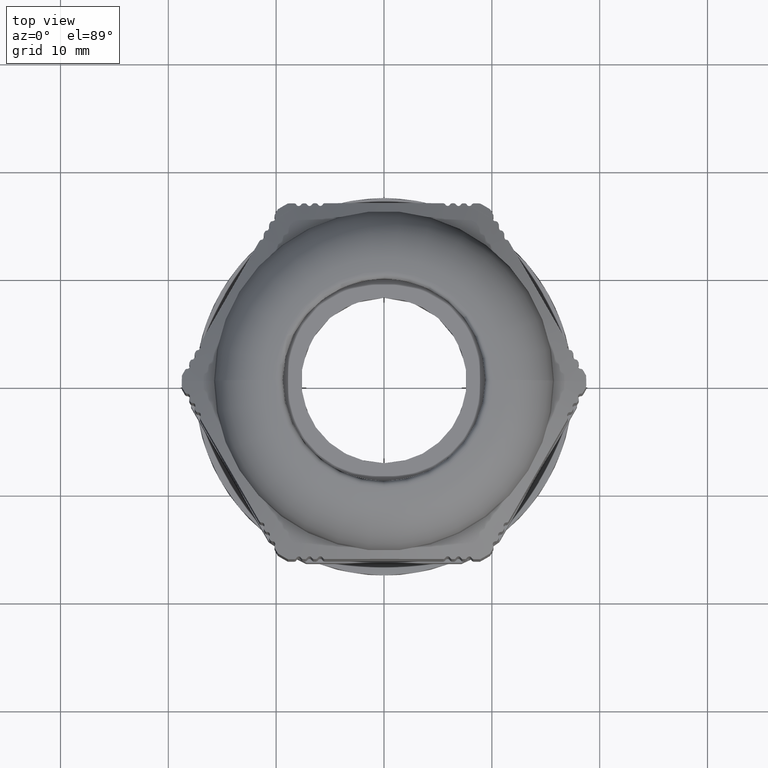
[diagram: clean part render]
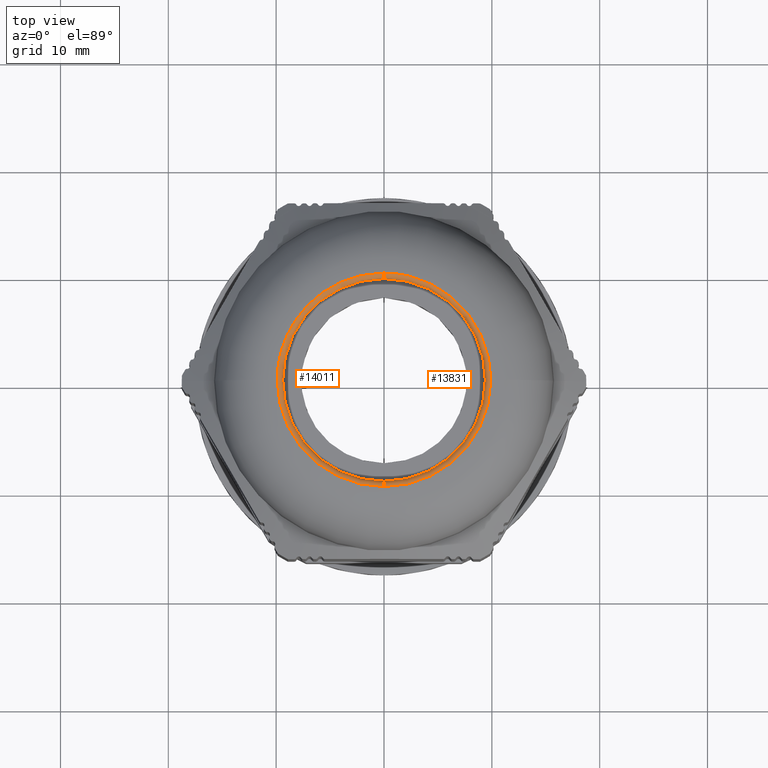
[diagram: same view with one multi-face feature highlighted, each face labeled with its STEP entity id]
A machine part, top view. The highlighted faces form ONE feature: a constant-radius fillet chain: 2 tangent blend faces with common blend radius 0.5 mm. The faces share edges in the B-rep.
Their STEP definitions:
[1] entity #13831 (Torus):
#1369 = VERTEX_POINT ( 'NONE', #8341 ) ;
#1378 = VERTEX_POINT ( 'NONE', #8331 ) ;
#1382 = VERTEX_POINT ( 'NONE', #8325 ) ;
#1416 = VERTEX_POINT ( 'NONE', #8394 ) ;
#1442 = VERTEX_POINT ( 'NONE', #2435 ) ;
#1456 = VERTEX_POINT ( 'NONE', #2436 ) ;
#1865 = CARTESIAN_POINT ( 'NONE',  ( 9.504443466971903100, 2.770479614432047800, 44.37108913028692600 ) ) ;
#1866 = CARTESIAN_POINT ( 'NONE',  ( 9.686937427341353800, 2.044925650721982200, 44.37108902778274500 ) ) ;
#1867 = CARTESIAN_POINT ( 'NONE',  ( 9.504649312326408900, 2.769774357740240500, 44.37108913028694000 ) ) ;
#1869 = CARTESIAN_POINT ( 'NONE',  ( 9.337776044440573700, 3.341764418498474100, 44.37108913028695400 ) ) ;
#1870 = CARTESIAN_POINT ( 'NONE',  ( 9.556434567978133300, 2.586326096799142600, 44.37108912790304100 ) ) ;
#1873 = CARTESIAN_POINT ( 'NONE',  ( 9.638214384749892000, 2.269966048431057500, 44.37108909878439500 ) ) ;
#1874 = CARTESIAN_POINT ( 'NONE',  ( 9.601467874226575100, 2.416222469946168100, 44.37108911608959300 ) ) ;
#1875 = CARTESIAN_POINT ( 'NONE',  ( 9.505575203743205700, 2.766596071575416100, 44.37108913028676200 ) ) ;
#1876 = CARTESIAN_POINT ( 'NONE',  ( 9.801950772570005900, 1.393331948558987900, 44.37108889475612000 ) ) ;
#1877 = CARTESIAN_POINT ( 'NONE',  ( 8.577409425431888200, 4.952271909453878100, 44.37108912721983200 ) ) ;
#1878 = CARTESIAN_POINT ( 'NONE',  ( 8.073438180366226300, 5.730523184012883900, 44.37108913004042400 ) ) ;
#1880 = CARTESIAN_POINT ( 'NONE',  ( 7.997306875545227500, 5.835693527185771500, 44.37108913022177600 ) ) ;
#1882 = CARTESIAN_POINT ( 'NONE',  ( 9.510667854931925900, 2.749062428805863600, 44.37108913028117700 ) ) ;
#1884 = CARTESIAN_POINT ( 'NONE',  ( 9.804499097291566700, 1.375213337438763200, 44.37108890876589100 ) ) ;
#1885 = CARTESIAN_POINT ( 'NONE',  ( 9.801017390920868900, 1.399919291281199700, 44.37108888953162700 ) ) ;
#1887 = CARTESIAN_POINT ( 'NONE',  ( 9.504893526823105200, 2.768935635353955100, 44.37108913028689700 ) ) ;
#1888 = CARTESIAN_POINT ( 'NONE',  ( 8.722060725713792100, 4.692814141275928100, 44.37108912651204000 ) ) ;
#1890 = CARTESIAN_POINT ( 'NONE',  ( 9.808018541213213500, 1.349840529217189800, 44.37108892746909600 ) ) ;
#1891 = CARTESIAN_POINT ( 'NONE',  ( 9.794931268256334500, 1.442755312979283200, 44.37108885524036600 ) ) ;
#1892 = CARTESIAN_POINT ( 'NONE',  ( 9.814889685048438400, 1.299071816300571000, 44.37108896182961400 ) ) ;
#1893 = CARTESIAN_POINT ( 'NONE',  ( 9.526056789708970700, 2.695365589028269900, 44.37108913007929100 ) ) ;
#1894 = CARTESIAN_POINT ( 'NONE',  ( 9.507211771559079600, 2.760971888296999100, 44.37108913028602300 ) ) ;
#1895 = CARTESIAN_POINT ( 'NONE',  ( 9.120201259816637300, 3.896533073070253200, 44.37108912651206100 ) ) ;
#1896 = CARTESIAN_POINT ( 'NONE',  ( 8.343400994102001500, 5.330934721568063100, 44.37108912863542500 ) ) ;
#1897 = CARTESIAN_POINT ( 'NONE',  ( 9.543072108915566800, 2.634813203780643800, 44.37108912918530700 ) ) ;
#1898 = CARTESIAN_POINT ( 'NONE',  ( 9.742887567279929300, 1.760976596801974600, 44.37108892564313600 ) ) ;
#1899 = CARTESIAN_POINT ( 'NONE',  ( 8.222141123992912500, 5.517636376865604000, 44.37108912940958300 ) ) ;
#1901 = CARTESIAN_POINT ( 'NONE',  ( 9.899999999999995000, -1.818600496733817600E-015, 44.37108913028694000 ) ) ;
#1904 = CARTESIAN_POINT ( 'NONE',  ( 9.899974792677932500, 0.2342184526232276900, 44.37108913028694700 ) ) ;
#1905 = CARTESIAN_POINT ( 'NONE',  ( 9.827960596491506000, 1.197444942565720800, 44.37108901924889900 ) ) ;
#1906 = CARTESIAN_POINT ( 'NONE',  ( 9.802718413738761100, 1.387896808605156600, 44.37108889901937700 ) ) ;
#1908 = CARTESIAN_POINT ( 'NONE',  ( 9.801438013851957000, 1.396955233892558200, 44.37108889189464400 ) ) ;
#1911 = CARTESIAN_POINT ( 'NONE',  ( 9.754591890034937800, 1.694346797248210500, 44.37108890199189700 ) ) ;
#1912 = CARTESIAN_POINT ( 'NONE',  ( 9.721437327986040000, 1.874337338211622200, 44.37108896710218900 ) ) ;
#1913 = CARTESIAN_POINT ( 'NONE',  ( 9.713635948292369100, 1.914359497205203600, 44.37108898187977200 ) ) ;
#1914 = CARTESIAN_POINT ( 'NONE',  ( 9.783592878869882300, 1.521633532919296300, 44.37108885403865300 ) ) ;
#1915 = CARTESIAN_POINT ( 'NONE',  ( 9.696563231257718100, 1.998835061109429200, 44.37108901196180700 ) ) ;
#1919 = CARTESIAN_POINT ( 'NONE',  ( 9.851413872811937400, 0.9938569271394097600, 44.37108909552209500 ) ) ;
#1920 = CARTESIAN_POINT ( 'NONE',  ( 9.891687909781714100, 0.4684276668608448000, 44.37108913697949900 ) ) ;
#1921 = CARTESIAN_POINT ( 'NONE',  ( 9.866897874862536000, 0.8188606291218075700, 44.37108911610560100 ) ) ;
#1923 = CARTESIAN_POINT ( 'NONE',  ( 9.518303274623717100, 2.722596706155926000, 44.37108913024093200 ) ) ;
#1925 = CARTESIAN_POINT ( 'NONE',  ( 1.059990373393936600, 9.845357520846072000, 44.37108912764632200 ) ) ;
#1928 = CARTESIAN_POINT ( 'NONE',  ( 7.517281640386211300, 6.477035021773900800, 44.37108913028694700 ) ) ;
#1930 = CARTESIAN_POINT ( 'NONE',  ( 3.265402959333254500, 9.381303678133580300, 44.37108911459402100 ) ) ;
#1934 = CARTESIAN_POINT ( 'NONE',  ( 7.942202671280080400, 5.910283625726521000, 44.37108913028092200 ) ) ;
#1935 = CARTESIAN_POINT ( 'NONE',  ( 7.931116989792914600, 5.925153504385248100, 44.37108913028572500 ) ) ;
#1936 = CARTESIAN_POINT ( 'NONE',  ( 0.5335836644601932300, 9.886204742705519500, 44.37108912955604700 ) ) ;
#1940 = CARTESIAN_POINT ( 'NONE',  ( 5.962566698311149200, 7.935745395870795500, 44.37108911459402100 ) ) ;
#1943 = CARTESIAN_POINT ( 'NONE',  ( 5.351510244497343500, 8.364171188494415400, 44.37108911097258400 ) ) ;
#1945 = CARTESIAN_POINT ( 'NONE',  ( 1.681348458652717200, 9.765196609975673100, 44.37108912447756400 ) ) ;
#1954 = CARTESIAN_POINT ( 'NONE',  ( 0.1072310957130795200, 9.899461237253484900, 44.37108913025609500 ) ) ;
#1956 = CARTESIAN_POINT ( 'NONE',  ( 0.8505696172143482100, 9.865709372564477800, 44.37108912856582800 ) ) ;
#1957 = CARTESIAN_POINT ( 'NONE',  ( 4.002975215497224700, 9.087035324654293000, 44.37108911097258400 ) ) ;
#1960 = CARTESIAN_POINT ( 'NONE',  ( 7.958799863347751500, 5.887955454021316400, 44.37108913027020000 ) ) ;
#1961 = CARTESIAN_POINT ( 'NONE',  ( 0.05365075028941364300, 9.899893760078233700, 44.37108913028068000 ) ) ;
#1963 = CARTESIAN_POINT ( 'NONE',  ( 7.045392939222280000, 6.992122546110145700, 44.37108912425120600 ) ) ;
#1965 = CARTESIAN_POINT ( 'NONE',  ( 0.02565448999637590400, 9.900001383889344800, 44.37108913028696100 ) ) ;
#1967 = CARTESIAN_POINT ( 'NONE',  ( 0.1875303303553052200, 9.898486734511823900, 44.37108913020128400 ) ) ;
#1977 = CARTESIAN_POINT ( 'NONE',  ( 2.086343998151459500, 9.686268703870728900, 44.37108912183691700 ) ) ;
#1979 = CARTESIAN_POINT ( 'NONE',  ( 0.3743778696301401400, 9.893944780392590800, 44.37108912995347500 ) ) ;
#1981 = CARTESIAN_POINT ( 'NONE',  ( -4.093159797732040600E-009, 9.899999999999781900, 44.37108913028694700 ) ) ;
#1986 = CARTESIAN_POINT ( 'NONE',  ( 7.926292474368969100, 5.931608827784782700, 44.37108913028694000 ) ) ;
#2201 = DIRECTION ( 'NONE',  ( -0.0000000000000000000, -0.0000000000000000000, -1.000000000000000000 ) ) ;
#2204 = DIRECTION ( 'NONE',  ( 1.000000000000000000, 0.0000000000000000000, 0.0000000000000000000 ) ) ;
#2220 = CARTESIAN_POINT ( 'NONE',  ( 0.0000000000000000000, 0.0000000000000000000, 43.87108913028693300 ) ) ;
#2224 = DIRECTION ( 'NONE',  ( 1.224646799147356200E-016, 1.000000000000000000, 0.0000000000000000000 ) ) ;
#2234 = CARTESIAN_POINT ( 'NONE',  ( 1.212400331155879900E-015, 9.900000000000002100, 43.87108913028692600 ) ) ;
#2240 = DIRECTION ( 'NONE',  ( 1.000000000000000000, -1.224646799147353200E-016, -2.291325031643130700E-032 ) ) ;
#2392 = CARTESIAN_POINT ( 'NONE',  ( 0.0000000000000000000, 0.0000000000000000000, 43.87108913028693300 ) ) ;
#2406 = DIRECTION ( 'NONE',  ( 1.000000000000000000, 0.0000000000000000000, 0.0000000000000000000 ) ) ;
#2410 = DIRECTION ( 'NONE',  ( -0.0000000000000000000, -0.0000000000000000000, -1.000000000000000000 ) ) ;
#2435 = CARTESIAN_POINT ( 'NONE',  ( -4.093159797732040600E-009, 9.899999999999781900, 44.37108913028694700 ) ) ;
#2436 = CARTESIAN_POINT ( 'NONE',  ( 1.182113181442366300E-015, 9.400000000000000400, 43.87108913028693300 ) ) ;
#2640 = EDGE_CURVE ( 'NONE', #1369, #1442, #7848, .T. ) ;
#2675 = EDGE_CURVE ( 'NONE', #1378, #1382, #12946, .T. ) ;
#2681 = EDGE_CURVE ( 'NONE', #1442, #1456, #12949, .T. ) ;
#2709 = EDGE_CURVE ( 'NONE', #1456, #1378, #12915, .T. ) ;
#2718 = EDGE_CURVE ( 'NONE', #1416, #1369, #12966, .T. ) ;
#2778 = EDGE_CURVE ( 'NONE', #1416, #1382, #4869, .T. ) ;
#3045 = TOROIDAL_SURFACE ( 'NONE', #3052, 9.900000000000002100, 0.5000000000000047700 ) ;
#3052 = AXIS2_PLACEMENT_3D ( 'NONE', #6097, #6098, #6086 ) ;
#3961 = ORIENTED_EDGE ( 'NONE', *, *, #2675, .T. ) ;
#4004 = ORIENTED_EDGE ( 'NONE', *, *, #2709, .T. ) ;
#4025 = ORIENTED_EDGE ( 'NONE', *, *, #2718, .T. ) ;
#4029 = ORIENTED_EDGE ( 'NONE', *, *, #2778, .F. ) ;
#4041 = ORIENTED_EDGE ( 'NONE', *, *, #2681, .T. ) ;
#4076 = ORIENTED_EDGE ( 'NONE', *, *, #2640, .T. ) ;
#4860 = AXIS2_PLACEMENT_3D ( 'NONE', #5456, #5438, #5444 ) ;
#4869 = CIRCLE ( 'NONE', #4860, 0.5000000000000073300 ) ;
#5438 = DIRECTION ( 'NONE',  ( -1.000000000000000000, 2.514011141268709100E-047, 6.811375142836254300E-032 ) ) ;
#5444 = DIRECTION ( 'NONE',  ( 6.811375142836220400E-032, 0.0000000000000000000, 1.000000000000000000 ) ) ;
#5456 = CARTESIAN_POINT ( 'NONE',  ( 0.0000000000000000000, -9.900000000000002100, 43.87108913028694000 ) ) ;
#6086 = DIRECTION ( 'NONE',  ( -2.030547460255491200E-047, -1.000000000000000000, 3.690901012716612600E-016 ) ) ;
#6091 = FACE_OUTER_BOUND ( 'NONE', #11241, .T. ) ;
#6097 = CARTESIAN_POINT ( 'NONE',  ( 0.0000000000000000000, -5.755839955992561600E-016, 43.87108913028693300 ) ) ;
#6098 = DIRECTION ( 'NONE',  ( 6.811375142836254300E-032, 3.690901012716612100E-016, 1.000000000000000000 ) ) ;
#7848 = B_SPLINE_CURVE_WITH_KNOTS ( 'NONE', 3,
 ( #1901, #1904, #1920, #1921, #1919, #1905, #1892, #1890, #1884, #1906, #1876, #1908, #1885, #1891, #1914, #1911, #1898, #1912, #1913, #1915, #1866, #1873, #1874, #1870, #1897, #1893, #1923, #1882, #1894, #1875, #1887, #1865, #1867, #1869, #1895, #1888, #1877, #1896, #1899, #1878, #1880, #1960, #1934, #1935, #1986, #1928, #1963, #1940, #1943, #1957, #1930, #1977, #1945, #1925, #1956, #1936, #1979, #1967, #1954, #1961, #1965, #1981 ),
 .UNSPECIFIED., .F., .F.,
 ( 4, 2, 1, 1, 1, 1, 1, 1, 2, 2, 2, 2, 2, 2, 2, 2, 1, 1, 1, 1, 2, 2, 2, 2, 1, 1, 1, 1, 2, 2, 2, 2, 2, 2, 2, 1, 1, 2, 4 ),
 ( 0.0000000000000000000, 0.03125000000000483600, 0.04687500000000726500, 0.05468750000000849300, 0.05859375000000912500, 0.06054687500000943700, 0.06152343750000958300, 0.06201171875000968700, 0.06225585937500974200, 0.06250000000000978400, 0.07812500000001003400, 0.08593750000001015900, 0.08984375000001024200, 0.09375000000001031100, 0.1093750000000106300, 0.1171875000000108100, 0.1210937500000108100, 0.1230468750000108700, 0.1240234375000110200, 0.1245117187500111000, 0.1247558593750110600, 0.1250000000000110200, 0.1875000000000059700, 0.2187500000000033900, 0.2343750000000020300, 0.2421875000000012800, 0.2460937500000008900, 0.2480468750000007500, 0.2490234375000007500, 0.2500000000000007200, 0.3125000000000005000, 0.3750000000000003300, 0.4375000000000002200, 0.4687500000000001700, 0.4843750000000001100, 0.4921875000000001100, 0.4960937500000001100, 0.4980468750000001100, 0.5000000000000000000 ),
 .UNSPECIFIED. ) ;
#8325 = CARTESIAN_POINT ( 'NONE',  ( 1.702745452337968900E-032, -9.400000000000000400, 43.87108913028693300 ) ) ;
#8331 = CARTESIAN_POINT ( 'NONE',  ( 9.400000000000000400, 0.0000000000000000000, 43.87108913028693300 ) ) ;
#8341 = CARTESIAN_POINT ( 'NONE',  ( 9.899999999999995000, -1.818600496733817600E-015, 44.37108913028694000 ) ) ;
#8394 = CARTESIAN_POINT ( 'NONE',  ( 3.405687571418160000E-032, -9.899999999999995000, 44.37108913028694700 ) ) ;
#11241 = EDGE_LOOP ( 'NONE', ( #4076, #4041, #4004, #3961, #4029, #4025 ) ) ;
#12915 = CIRCLE ( 'NONE', #12922, 9.400000000000000400 ) ;
#12922 = AXIS2_PLACEMENT_3D ( 'NONE', #2392, #2410, #2406 ) ;
#12938 = AXIS2_PLACEMENT_3D ( 'NONE', #2220, #2201, #2204 ) ;
#12946 = CIRCLE ( 'NONE', #12938, 9.400000000000000400 ) ;
#12949 = CIRCLE ( 'NONE', #12954, 0.5000000000000038900 ) ;
#12954 = AXIS2_PLACEMENT_3D ( 'NONE', #2234, #2240, #2224 ) ;
#12966 = CIRCLE ( 'NONE', #12982, 9.899999999999986100 ) ;
#12982 = AXIS2_PLACEMENT_3D ( 'NONE', #14733, #14740, #14798 ) ;
#13831 = ADVANCED_FACE ( 'NONE', ( #6091 ), #3045, .T. ) ;
#14733 = CARTESIAN_POINT ( 'NONE',  ( 3.405687571418160000E-032, -3.910389449634238600E-016, 44.37108913028694000 ) ) ;
#14740 = DIRECTION ( 'NONE',  ( 6.811375142836254300E-032, 3.690901012716612100E-016, 1.000000000000000000 ) ) ;
#14798 = DIRECTION ( 'NONE',  ( 0.0000000000000000000, -1.000000000000000000, 7.008983741320442600E-016 ) ) ;
[2] entity #14011 (Torus):
#1382 = VERTEX_POINT ( 'NONE', #8325 ) ;
#1416 = VERTEX_POINT ( 'NONE', #8394 ) ;
#1442 = VERTEX_POINT ( 'NONE', #2435 ) ;
#1454 = VERTEX_POINT ( 'NONE', #2428 ) ;
#1456 = VERTEX_POINT ( 'NONE', #2436 ) ;
#2224 = DIRECTION ( 'NONE',  ( 1.224646799147356200E-016, 1.000000000000000000, 0.0000000000000000000 ) ) ;
#2234 = CARTESIAN_POINT ( 'NONE',  ( 1.212400331155879900E-015, 9.900000000000002100, 43.87108913028692600 ) ) ;
#2240 = DIRECTION ( 'NONE',  ( 1.000000000000000000, -1.224646799147353200E-016, -2.291325031643130700E-032 ) ) ;
#2327 = CARTESIAN_POINT ( 'NONE',  ( 0.0000000000000000000, 0.0000000000000000000, 43.87108913028693300 ) ) ;
#2328 = DIRECTION ( 'NONE',  ( -0.0000000000000000000, -0.0000000000000000000, -1.000000000000000000 ) ) ;
#2329 = DIRECTION ( 'NONE',  ( 1.000000000000000000, 0.0000000000000000000, 0.0000000000000000000 ) ) ;
#2428 = CARTESIAN_POINT ( 'NONE',  ( -9.400000000000000400, 1.151167991198511900E-015, 43.87108913028693300 ) ) ;
#2435 = CARTESIAN_POINT ( 'NONE',  ( -4.093159797732040600E-009, 9.899999999999781900, 44.37108913028694700 ) ) ;
#2436 = CARTESIAN_POINT ( 'NONE',  ( 1.182113181442366300E-015, 9.400000000000000400, 43.87108913028693300 ) ) ;
#2681 = EDGE_CURVE ( 'NONE', #1442, #1456, #12949, .T. ) ;
#2697 = EDGE_CURVE ( 'NONE', #1382, #1454, #12950, .T. ) ;
#2778 = EDGE_CURVE ( 'NONE', #1416, #1382, #4869, .T. ) ;
#2898 = CIRCLE ( 'NONE', #2932, 9.400000000000000400 ) ;
#2932 = AXIS2_PLACEMENT_3D ( 'NONE', #14855, #14886, #14908 ) ;
#3181 = TOROIDAL_SURFACE ( 'NONE', #3288, 9.900000000000002100, 0.5000000000000047700 ) ;
#3288 = AXIS2_PLACEMENT_3D ( 'NONE', #8674, #8649, #8671 ) ;
#4737 = CIRCLE ( 'NONE', #4746, 9.899999999999986100 ) ;
#4746 = AXIS2_PLACEMENT_3D ( 'NONE', #7542, #7563, #7565 ) ;
#4860 = AXIS2_PLACEMENT_3D ( 'NONE', #5456, #5438, #5444 ) ;
#4869 = CIRCLE ( 'NONE', #4860, 0.5000000000000073300 ) ;
#5438 = DIRECTION ( 'NONE',  ( -1.000000000000000000, 2.514011141268709100E-047, 6.811375142836254300E-032 ) ) ;
#5444 = DIRECTION ( 'NONE',  ( 6.811375142836220400E-032, 0.0000000000000000000, 1.000000000000000000 ) ) ;
#5456 = CARTESIAN_POINT ( 'NONE',  ( 0.0000000000000000000, -9.900000000000002100, 43.87108913028694000 ) ) ;
#6933 = CARTESIAN_POINT ( 'NONE',  ( -9.494130198934316300, 2.805602454680964800, 44.37108913022308300 ) ) ;
#6934 = CARTESIAN_POINT ( 'NONE',  ( -9.569606491207411000, 2.547264273144060500, 44.37108913028694000 ) ) ;
#6935 = CARTESIAN_POINT ( 'NONE',  ( -9.871945472908844700, 0.7484585418918953100, 44.37108906593555000 ) ) ;
#6936 = CARTESIAN_POINT ( 'NONE',  ( -9.873696895640488700, 0.7248145778105802300, 44.37108907169506000 ) ) ;
#6937 = CARTESIAN_POINT ( 'NONE',  ( -9.701539529698274900, 1.976972611247846300, 44.37108907797352900 ) ) ;
#6938 = CARTESIAN_POINT ( 'NONE',  ( -9.899999999999998600, 1.711019886426561400E-015, 44.37108913028694000 ) ) ;
#6939 = CARTESIAN_POINT ( 'NONE',  ( -9.868591709108423900, 0.7917120499150618300, 44.37108905491803800 ) ) ;
#6940 = CARTESIAN_POINT ( 'NONE',  ( -9.798838625931930200, 1.414713320496691300, 44.37108893993634200 ) ) ;
#6941 = CARTESIAN_POINT ( 'NONE',  ( -9.840243748556810400, 1.091318397024314300, 44.37108896882988800 ) ) ;
#6942 = CARTESIAN_POINT ( 'NONE',  ( -9.847435903748110100, 1.025208311428063700, 44.37108898855373700 ) ) ;
#6943 = CARTESIAN_POINT ( 'NONE',  ( -9.899128068684255800, 0.3653994221598544400, 44.37108915469479300 ) ) ;
#6944 = CARTESIAN_POINT ( 'NONE',  ( -9.899985966388470600, 0.1303890560123037400, 44.37108913028694000 ) ) ;
#6945 = CARTESIAN_POINT ( 'NONE',  ( -9.808285211293190600, 1.348846521876260000, 44.37108891708939500 ) ) ;
#6946 = CARTESIAN_POINT ( 'NONE',  ( -9.735645349484329400, 1.804699138286522100, 44.37108904908824100 ) ) ;
#6947 = CARTESIAN_POINT ( 'NONE',  ( -9.863464673372071400, 0.8550600693413829000, 44.37108903809707500 ) ) ;
#6948 = CARTESIAN_POINT ( 'NONE',  ( -9.499081766747078600, 2.788806129176051300, 44.37108913027369500 ) ) ;
#6949 = CARTESIAN_POINT ( 'NONE',  ( -9.797264224554799800, 1.425574280370929000, 44.37108894363973400 ) ) ;
#6950 = CARTESIAN_POINT ( 'NONE',  ( -9.627246403336400200, 2.320202026770317200, 44.37108912103013100 ) ) ;
#6951 = CARTESIAN_POINT ( 'NONE',  ( -9.501949797149771700, 2.779022991464255000, 44.37108913028696100 ) ) ;
#6952 = CARTESIAN_POINT ( 'NONE',  ( -9.800693751624461200, 1.401835747186407400, 44.37108893550109900 ) ) ;
#6953 = CARTESIAN_POINT ( 'NONE',  ( -9.770076754365389200, 1.602749616278859900, 44.37108899849296500 ) ) ;
#6954 = CARTESIAN_POINT ( 'NONE',  ( -9.469028174700071100, 2.889481859656173800, 44.37108912962160900 ) ) ;
#6955 = CARTESIAN_POINT ( 'NONE',  ( -9.486669521309128300, 2.830787109963446300, 44.37108913011105900 ) ) ;
#6956 = CARTESIAN_POINT ( 'NONE',  ( -9.785948853701580000, 1.501557675503620200, 44.37108896841820600 ) ) ;
#6957 = CARTESIAN_POINT ( 'NONE',  ( -9.793548533338043400, 1.450910384132059200, 44.37108895211599000 ) ) ;
#6958 = CARTESIAN_POINT ( 'NONE',  ( -9.799884217824240900, 1.407472100638957000, 44.37108893745164600 ) ) ;
#6959 = CARTESIAN_POINT ( 'NONE',  ( -9.819961568155255400, 1.265304648937173800, 44.37108892471253100 ) ) ;
#6960 = CARTESIAN_POINT ( 'NONE',  ( -9.858137992650041400, 0.9138142203516745900, 44.37108902111374000 ) ) ;
#7504 = CARTESIAN_POINT ( 'NONE',  ( -2.316033284392156900, 9.625371028015777600, 44.37108912987211800 ) ) ;
#7506 = CARTESIAN_POINT ( 'NONE',  ( -4.639620849181516100, 8.745535038662724900, 44.37108912994102600 ) ) ;
#7507 = CARTESIAN_POINT ( 'NONE',  ( -5.117063247429017600, 8.475126066689510300, 44.37108912106040000 ) ) ;
#7508 = CARTESIAN_POINT ( 'NONE',  ( -4.656081514774671200, 8.736759391741982100, 44.37108913028064400 ) ) ;
#7510 = CARTESIAN_POINT ( 'NONE',  ( -1.139102520758128500, 9.834559500338738000, 44.37108906773996600 ) ) ;
#7511 = CARTESIAN_POINT ( 'NONE',  ( -4.649224639190221900, 8.740419149396395000, 44.37108913019956400 ) ) ;
#7512 = CARTESIAN_POINT ( 'NONE',  ( -4.653338974666477100, 8.738223686551750200, 44.37108913025564000 ) ) ;
#7513 = CARTESIAN_POINT ( 'NONE',  ( -4.843370818409701100, 8.634481233714971900, 44.37108913014396400 ) ) ;
#7514 = CARTESIAN_POINT ( 'NONE',  ( -2.433908251947401800, 9.596150455680563200, 44.37108913028695400 ) ) ;
#7515 = CARTESIAN_POINT ( 'NONE',  ( -1.227076755601116200, 9.823958275676389500, 44.37108904233341600 ) ) ;
#7516 = CARTESIAN_POINT ( 'NONE',  ( -4.979871942497539700, 8.556461918995681900, 44.37108912755717700 ) ) ;
#7517 = CARTESIAN_POINT ( 'NONE',  ( -5.130669055416106500, 8.466891750031626500, 44.37108912016420700 ) ) ;
#7518 = CARTESIAN_POINT ( 'NONE',  ( -1.487081575812830000, 9.788100822823208700, 44.37108904725866400 ) ) ;
#7519 = CARTESIAN_POINT ( 'NONE',  ( -1.545677019015694300, 9.779102045384725300, 44.37108905586018900 ) ) ;
#7520 = CARTESIAN_POINT ( 'NONE',  ( -5.139801331893655100, 8.461354677840137800, 44.37108911954673800 ) ) ;
#7521 = CARTESIAN_POINT ( 'NONE',  ( -2.431467772307933700, 9.596768915353894900, 44.37108913028681900 ) ) ;
#7522 = CARTESIAN_POINT ( 'NONE',  ( -3.202942020754582700, 9.376080595600266000, 44.37108916433218300 ) ) ;
#7523 = CARTESIAN_POINT ( 'NONE',  ( -5.146009457362319000, 8.457581935678053500, 44.37108911911340700 ) ) ;
#7524 = CARTESIAN_POINT ( 'NONE',  ( -5.245559051351868600, 8.397001236233022000, 44.37108911203274200 ) ) ;
#7525 = CARTESIAN_POINT ( 'NONE',  ( -1.680573456485274800, 9.756623635827537600, 44.37108907626595300 ) ) ;
#7526 = CARTESIAN_POINT ( 'NONE',  ( -1.795321316122760400, 9.736133416788970200, 44.37108909289316500 ) ) ;
#7527 = CARTESIAN_POINT ( 'NONE',  ( -3.759795392154893000, 9.160823161319081400, 44.37108900986926600 ) ) ;
#7528 = CARTESIAN_POINT ( 'NONE',  ( -1.335134105086058800, 9.810412360975268700, 44.37108902971851200 ) ) ;
#7529 = CARTESIAN_POINT ( 'NONE',  ( -2.427229598945070500, 9.597842756293056600, 44.37108913028655600 ) ) ;
#7530 = CARTESIAN_POINT ( 'NONE',  ( -0.8712050611598873800, 9.862658071010704600, 44.37108911600064700 ) ) ;
#7531 = CARTESIAN_POINT ( 'NONE',  ( -1.221880822689402900, 9.824603515031578000, 44.37108904399033800 ) ) ;
#7532 = CARTESIAN_POINT ( 'NONE',  ( -2.416753527176727100, 9.600489964452906500, 44.37108913028457400 ) ) ;
#7533 = CARTESIAN_POINT ( 'NONE',  ( -1.205967504553278100, 9.826564128821466700, 44.37108904893406000 ) ) ;
#7534 = CARTESIAN_POINT ( 'NONE',  ( -1.754879267322300400, 9.743507619167955300, 44.37108908717228000 ) ) ;
#7535 = CARTESIAN_POINT ( 'NONE',  ( -4.671854087093474400, 8.728328869576074600, 44.37108913028692600 ) ) ;
#7536 = CARTESIAN_POINT ( 'NONE',  ( -5.026392075318183200, 8.529321608019536400, 44.37108912599188000 ) ) ;
#7537 = CARTESIAN_POINT ( 'NONE',  ( -4.658619926947984900, 8.735402949648170400, 44.37108913028694000 ) ) ;
#7538 = CARTESIAN_POINT ( 'NONE',  ( -4.349266291010443400, 8.894740508912491400, 44.37108906714084400 ) ) ;
#7539 = CARTESIAN_POINT ( 'NONE',  ( -1.049878492476547600, 9.844616286958709500, 44.37108908825229000 ) ) ;
#7540 = CARTESIAN_POINT ( 'NONE',  ( -0.4104682294443023300, 9.893624074335704700, 44.37108913267395100 ) ) ;
#7541 = CARTESIAN_POINT ( 'NONE',  ( -4.620398599988154100, 8.755739373482910500, 44.37108912893176400 ) ) ;
#7542 = CARTESIAN_POINT ( 'NONE',  ( 3.405687571418160000E-032, -3.910389449634238600E-016, 44.37108913028694000 ) ) ;
#7543 = CARTESIAN_POINT ( 'NONE',  ( -2.123035684498984400, 9.670306588410429800, 44.37108912505138400 ) ) ;
#7544 = CARTESIAN_POINT ( 'NONE',  ( -2.393451741820870700, 9.606344087256477600, 44.37108913026877800 ) ) ;
#7545 = CARTESIAN_POINT ( 'NONE',  ( -2.822820673809598400, 9.497357057504194300, 44.37108913028695400 ) ) ;
#7546 = CARTESIAN_POINT ( 'NONE',  ( -1.215515723344052300, 9.825389607259973300, 44.37108904598349600 ) ) ;
#7547 = CARTESIAN_POINT ( 'NONE',  ( -4.719973332017660000, 8.702899895027204700, 44.37108913046457600 ) ) ;
#7548 = CARTESIAN_POINT ( 'NONE',  ( -1.265640396535705500, 9.819157783134405900, 44.37108902993698200 ) ) ;
#7549 = CARTESIAN_POINT ( 'NONE',  ( -2.434237334855171100, 9.596066579029976400, 44.37108913028694000 ) ) ;
#7550 = CARTESIAN_POINT ( 'NONE',  ( -4.214551898768165800, 8.959008302279277900, 44.37108902700926200 ) ) ;
#7551 = CARTESIAN_POINT ( 'NONE',  ( -4.093159797732040600E-009, 9.899999999999781900, 44.37108913028694700 ) ) ;
#7552 = CARTESIAN_POINT ( 'NONE',  ( -4.504657542904639400, 8.816195261097057300, 44.37108911124160200 ) ) ;
#7553 = CARTESIAN_POINT ( 'NONE',  ( -4.893018222696974300, 8.606590000699917200, 44.37108912979912400 ) ) ;
#7555 = CARTESIAN_POINT ( 'NONE',  ( -4.581895636381222700, 8.776038154772187700, 44.37108912509063400 ) ) ;
#7556 = CARTESIAN_POINT ( 'NONE',  ( -5.085966760296064300, 8.493843709381138800, 44.37108912295021000 ) ) ;
#7557 = CARTESIAN_POINT ( 'NONE',  ( -1.993865570181998100, 9.698610510099090500, 44.37108911870647900 ) ) ;
#7559 = CARTESIAN_POINT ( 'NONE',  ( -1.645374224546696500, 9.762617842503065200, 44.37108907090691900 ) ) ;
#7560 = CARTESIAN_POINT ( 'NONE',  ( -3.943220459040874800, 9.083407298111499300, 44.37108898185263700 ) ) ;
#7561 = CARTESIAN_POINT ( 'NONE',  ( -0.7177247622314531000, 9.874564996767361400, 44.37108912410055700 ) ) ;
#7562 = CARTESIAN_POINT ( 'NONE',  ( -2.369444867174030500, 9.612297396811703400, 44.37108913020696100 ) ) ;
#7563 = DIRECTION ( 'NONE',  ( 6.811375142836254300E-032, 3.690901012716612100E-016, 1.000000000000000000 ) ) ;
#7564 = CARTESIAN_POINT ( 'NONE',  ( -2.273229370878265200, 9.635648904642971900, 44.37108912939405800 ) ) ;
#7565 = DIRECTION ( 'NONE',  ( 0.0000000000000000000, -1.000000000000000000, 7.008983741320442600E-016 ) ) ;
#7566 = CARTESIAN_POINT ( 'NONE',  ( -1.183684370069402400, 9.829272357828630300, 44.37108905554939000 ) ) ;
#7567 = CARTESIAN_POINT ( 'NONE',  ( -0.2052359199709949100, 9.899988928885282000, 44.37108913028695400 ) ) ;
#7568 = CARTESIAN_POINT ( 'NONE',  ( -8.183128841757922000, 5.572010992515841600, 44.37108912829683000 ) ) ;
#7569 = CARTESIAN_POINT ( 'NONE',  ( -6.770327431416350600, 7.231167994433859800, 44.37108913028695400 ) ) ;
#7570 = CARTESIAN_POINT ( 'NONE',  ( -7.874446007636863400, 6.000441727146525600, 44.37108912604102100 ) ) ;
#7571 = CARTESIAN_POINT ( 'NONE',  ( -8.443788658917903000, 5.168601307849093600, 44.37108912016677900 ) ) ;
#7572 = CARTESIAN_POINT ( 'NONE',  ( -9.021589635880179300, 4.086329238289295100, 44.37108913028693300 ) ) ;
#7573 = CARTESIAN_POINT ( 'NONE',  ( -7.544407266826420200, 6.414906240136049900, 44.37108901112746700 ) ) ;
#7574 = CARTESIAN_POINT ( 'NONE',  ( -7.919915003409109000, 5.940113559150048200, 44.37108913028694000 ) ) ;
#7575 = CARTESIAN_POINT ( 'NONE',  ( -8.388452060610291000, 5.258116613391873500, 44.37108912128714900 ) ) ;
#7576 = CARTESIAN_POINT ( 'NONE',  ( -6.438625891226083200, 7.520329446592053400, 44.37108912908483700 ) ) ;
#7577 = CARTESIAN_POINT ( 'NONE',  ( -7.951837148560652900, 5.897818000945435700, 44.37108913026363400 ) ) ;
#7578 = CARTESIAN_POINT ( 'NONE',  ( -7.828489866211584500, 6.060579958360396100, 44.37108911489218600 ) ) ;
#7579 = CARTESIAN_POINT ( 'NONE',  ( -9.133633208679967200, 3.829261396445692500, 44.37108912009897900 ) ) ;
#7580 = CARTESIAN_POINT ( 'NONE',  ( -8.049257557887891300, 5.763924468942079200, 44.37108913027813600 ) ) ;
#7581 = CARTESIAN_POINT ( 'NONE',  ( -7.372753420725676900, 6.609671352026462700, 44.37108907232762800 ) ) ;
#7582 = CARTESIAN_POINT ( 'NONE',  ( -5.565399109974597600, 8.187862180754866200, 44.37108908797220900 ) ) ;
#7583 = CARTESIAN_POINT ( 'NONE',  ( -9.285094462994262400, 3.437244032338110200, 44.37108912009896500 ) ) ;
#7584 = CARTESIAN_POINT ( 'NONE',  ( -9.356675868993829000, 3.239632253956522800, 44.37108912296434200 ) ) ;
#7585 = CARTESIAN_POINT ( 'NONE',  ( -6.149207776046306900, 7.759443195590728600, 44.37108910905630700 ) ) ;
#7586 = CARTESIAN_POINT ( 'NONE',  ( -8.439806892738360500, 5.175100103444865600, 44.37108912021677300 ) ) ;
#7587 = CARTESIAN_POINT ( 'NONE',  ( -6.259121723405264100, 7.671444004229802400, 44.37108911882957300 ) ) ;
#7588 = CARTESIAN_POINT ( 'NONE',  ( -9.432814567546431700, 3.006588660519067700, 44.37108912791902800 ) ) ;
#7589 = CARTESIAN_POINT ( 'NONE',  ( -5.450616370598262400, 8.264788071479516800, 44.37108909460511800 ) ) ;
#7590 = CARTESIAN_POINT ( 'NONE',  ( -6.493292891700860100, 7.473137616786242900, 44.37108913028694000 ) ) ;
#7591 = CARTESIAN_POINT ( 'NONE',  ( -8.098277466489262700, 5.694656875033580000, 44.37108912986487800 ) ) ;
#7592 = CARTESIAN_POINT ( 'NONE',  ( -8.295656534319059400, 5.403676428322024900, 44.37108912453389600 ) ) ;
#7593 = CARTESIAN_POINT ( 'NONE',  ( -5.332858559597482000, 8.341621166108529600, 44.37108910384567700 ) ) ;
#7594 = CARTESIAN_POINT ( 'NONE',  ( -8.419254124551349200, 5.208508663086125700, 44.37108912055377600 ) ) ;
#7595 = CARTESIAN_POINT ( 'NONE',  ( -7.916759420697524700, 5.944327209263579300, 44.37108913026114700 ) ) ;
#7596 = CARTESIAN_POINT ( 'NONE',  ( -8.191725278430258300, 5.559368661230468700, 44.37108912806292700 ) ) ;
#7597 = CARTESIAN_POINT ( 'NONE',  ( -7.019318974287033400, 6.989789928724711400, 44.37108917893589700 ) ) ;
#7598 = CARTESIAN_POINT ( 'NONE',  ( -5.616058704600173500, 8.153162308540750300, 44.37108908664086500 ) ) ;
#7599 = CARTESIAN_POINT ( 'NONE',  ( -5.593605581392391300, 8.168589354280522100, 44.37108908710459300 ) ) ;
#7600 = CARTESIAN_POINT ( 'NONE',  ( -6.385116181266050200, 7.566065802354837700, 44.37108912704025700 ) ) ;
#7601 = CARTESIAN_POINT ( 'NONE',  ( -5.506196501282273600, 8.227926727455862700, 44.37108909069666400 ) ) ;
#7602 = CARTESIAN_POINT ( 'NONE',  ( -5.926911400207652400, 7.932269495471490300, 44.37108909189503000 ) ) ;
#7603 = CARTESIAN_POINT ( 'NONE',  ( -7.897273381824916800, 5.970258654623495300, 44.37108912917403800 ) ) ;
#7604 = CARTESIAN_POINT ( 'NONE',  ( -7.908649299040239300, 5.955138756797493800, 44.37108913000216900 ) ) ;
#7605 = CARTESIAN_POINT ( 'NONE',  ( -7.914327803252487700, 5.947571733483445500, 44.37108913021491900 ) ) ;
#7606 = CARTESIAN_POINT ( 'NONE',  ( -8.124518830045882800, 5.657264118641245800, 44.37108912955783800 ) ) ;
#7607 = CARTESIAN_POINT ( 'NONE',  ( -8.158032578222444500, 5.608723293863673300, 44.37108912890941800 ) ) ;
#7608 = CARTESIAN_POINT ( 'NONE',  ( -8.188250668539076600, 5.564484261040972200, 44.37108912815951800 ) ) ;
#7609 = CARTESIAN_POINT ( 'NONE',  ( -8.247709535986967200, 5.476851414504922700, 44.37108912647228500 ) ) ;
#7610 = CARTESIAN_POINT ( 'NONE',  ( -7.925439781817132700, 5.932732214397057100, 44.37108913028694000 ) ) ;
#7611 = CARTESIAN_POINT ( 'NONE',  ( -8.445156085599945700, 5.166367787534136700, 44.37108912015055800 ) ) ;
#7612 = CARTESIAN_POINT ( 'NONE',  ( -8.775902735834067800, 4.583163523719313100, 44.37108912740253400 ) ) ;
#7613 = CARTESIAN_POINT ( 'NONE',  ( -6.474189695145059700, 7.489711708094489500, 44.37108913002634800 ) ) ;
#7614 = CARTESIAN_POINT ( 'NONE',  ( -5.605396790896977100, 8.160494853307444200, 44.37108908684169300 ) ) ;
#7615 = CARTESIAN_POINT ( 'NONE',  ( -8.358958323706122700, 5.304820624276672400, 44.37108912226970100 ) ) ;
#7616 = CARTESIAN_POINT ( 'NONE',  ( -8.529383413144579200, 5.028541256934514300, 44.37108911931565600 ) ) ;
#7617 = CARTESIAN_POINT ( 'NONE',  ( -8.838119007054487500, 4.461047221784478500, 44.37108912946524700 ) ) ;
#7618 = CARTESIAN_POINT ( 'NONE',  ( -5.613191711517493400, 8.155135523270567800, 44.37108908669083000 ) ) ;
#7619 = CARTESIAN_POINT ( 'NONE',  ( -8.433772142218680700, 5.184936943190976400, 44.37108912030029000 ) ) ;
#7620 = CARTESIAN_POINT ( 'NONE',  ( -8.881673897439684500, 4.373377994279270100, 44.37108913022071000 ) ) ;
#7621 = CARTESIAN_POINT ( 'NONE',  ( -8.891206827532776900, 4.353944310247371200, 44.37108913028695400 ) ) ;
#7622 = CARTESIAN_POINT ( 'NONE',  ( -7.918380048359896500, 5.942163856812496400, 44.37108913028174600 ) ) ;
#7623 = CARTESIAN_POINT ( 'NONE',  ( -8.175495495672690200, 5.583211774066350900, 44.37108912849540600 ) ) ;
#7624 = CARTESIAN_POINT ( 'NONE',  ( -5.775421859168935700, 8.043256691761591500, 44.37108908452354700 ) ) ;
#7625 = CARTESIAN_POINT ( 'NONE',  ( -8.647123778607058500, 4.825150640280859300, 44.37108912166380700 ) ) ;
#7626 = CARTESIAN_POINT ( 'NONE',  ( -8.021202001946486200, 5.802750136743943800, 44.37108913029585700 ) ) ;
#7627 = CARTESIAN_POINT ( 'NONE',  ( -7.735378182443517000, 6.179936628096600200, 44.37108908051278900 ) ) ;
#7628 = CARTESIAN_POINT ( 'NONE',  ( -8.864314597089118000, 4.408476647466498500, 44.37108912998226600 ) ) ;
#7790 = B_SPLINE_CURVE_WITH_KNOTS ( 'NONE', 3,
 ( #7551, #7567, #7540, #7561, #7530, #7539, #7510, #7566, #7533, #7546, #7531, #7515, #7548, #7528, #7518, #7519, #7559, #7525, #7534, #7526, #7557, #7543, #7564, #7504, #7562, #7544, #7532, #7529, #7521, #7549, #7514, #7545, #7522, #7527, #7560, #7550, #7538, #7552, #7555, #7541, #7506, #7511, #7512, #7508, #7537, #7535, #7547, #7513, #7553, #7516, #7536, #7556, #7507, #7517, #7520, #7523, #7524, #7593, #7589, #7601, #7582, #7599, #7614, #7618, #7598, #7624, #7602, #7585, #7587, #7600, #7576, #7613, #7590, #7569, #7597, #7581, #7573, #7627, #7578, #7570, #7603, #7604, #7605, #7595, #7622, #7574, #7610, #7577, #7626, #7580, #7591, #7606, #7607, #7623, #7568, #7608, #7596, #7609, #7592, #7615, #7575, #7594, #7619, #7586, #7571, #7611, #7616, #7625, #7612, #7617, #7628, #7620, #7621, #7572, #7579, #7583, #7584, #7588, #6954, #6955, #6933, #6948, #6951, #6934, #6950, #6937, #6946, #6953, #6956, #6957, #6949, #6940, #6958, #6952, #6945, #6959, #6941, #6942, #6960, #6947, #6939, #6935, #6936, #6943, #6944, #6938 ),
 .UNSPECIFIED., .F., .F.,
 ( 4, 2, 1, 1, 1, 1, 1, 2, 2, 2, 2, 2, 2, 2, 2, 1, 1, 1, 2, 2, 2, 2, 1, 1, 1, 1, 1, 1, 2, 2, 2, 2, 1, 1, 1, 2, 2, 2, 1, 1, 1, 2, 2, 2, 1, 1, 2, 2, 2, 1, 1, 1, 1, 1, 1, 1, 2, 2, 2, 2, 1, 1, 1, 2, 2, 2, 1, 1, 1, 2, 2, 1, 1, 1, 2, 2, 2, 1, 1, 1, 1, 2, 2, 2, 1, 1, 1, 1, 1, 2, 2, 2, 2, 1, 2, 2, 4 ),
 ( 0.5000000000000000000, 0.5156249999999831200, 0.5234374999999748000, 0.5273437499999705800, 0.5292968749999684700, 0.5302734374999673600, 0.5307617187499669200, 0.5310058593749665800, 0.5312499999999663600, 0.5390624999999574800, 0.5429687499999530400, 0.5449218749999508200, 0.5468749999999486000, 0.5546874999999398300, 0.5585937499999353900, 0.5605468749999332800, 0.5615234374999321700, 0.5620117187499316100, 0.5622558593749312800, 0.5624999999999309400, 0.5937499999998850900, 0.6093749999998622200, 0.6171874999998507900, 0.6210937499998450100, 0.6230468749998422400, 0.6240234374998407900, 0.6245117187498401300, 0.6247558593748399100, 0.6248779296873396800, 0.6249999999998395700, 0.6328124999998365800, 0.6367187499998351300, 0.6386718749998343500, 0.6396484374998340200, 0.6401367187498339100, 0.6403808593748338000, 0.6406249999998336900, 0.6484374999998309100, 0.6523437499998294700, 0.6542968749998288000, 0.6552734374998285800, 0.6557617187498283600, 0.6562499999998281400, 0.6718749999998225900, 0.6796874999998197000, 0.6835937499998183700, 0.6855468749998177000, 0.6874999999998170400, 0.7187499999998059300, 0.7343749999998006000, 0.7421874999997979400, 0.7460937499997965000, 0.7480468749997959400, 0.7490234374997956100, 0.7495117187497955000, 0.7497558593747952700, 0.7498779296872952700, 0.7499999999997951600, 0.7578124999998001600, 0.7617187499998026000, 0.7636718749998039300, 0.7646484374998043800, 0.7651367187498046000, 0.7653808593748048200, 0.7656249999998049300, 0.7734374999998101500, 0.7773437499998130400, 0.7792968749998143700, 0.7802734374998151500, 0.7807617187498154800, 0.7812499999998159300, 0.7968749999998283600, 0.8046874999998344700, 0.8085937499998376900, 0.8105468749998392400, 0.8124999999998407900, 0.8437499999998663300, 0.8593749999998792100, 0.8671874999998856500, 0.8710937499998887600, 0.8730468749998904200, 0.8740234374998912000, 0.8749999999998919800, 0.9062499999999177300, 0.9218749999999305000, 0.9296874999999369400, 0.9335937499999401600, 0.9355468749999418200, 0.9365234374999424900, 0.9370117187499429300, 0.9374999999999433800, 0.9531249999999575900, 0.9609374999999646900, 0.9648437499999681400, 0.9667968749999699100, 0.9687499999999716900, 1.000000000000000000 ),
 .UNSPECIFIED. ) ;
#8130 = ORIENTED_EDGE ( 'NONE', *, *, #2778, .T. ) ;
#8152 = ORIENTED_EDGE ( 'NONE', *, *, #13725, .T. ) ;
#8186 = ORIENTED_EDGE ( 'NONE', *, *, #13568, .T. ) ;
#8191 = ORIENTED_EDGE ( 'NONE', *, *, #2681, .F. ) ;
#8199 = ORIENTED_EDGE ( 'NONE', *, *, #2697, .T. ) ;
#8236 = ORIENTED_EDGE ( 'NONE', *, *, #13566, .T. ) ;
#8325 = CARTESIAN_POINT ( 'NONE',  ( 1.702745452337968900E-032, -9.400000000000000400, 43.87108913028693300 ) ) ;
#8394 = CARTESIAN_POINT ( 'NONE',  ( 3.405687571418160000E-032, -9.899999999999995000, 44.37108913028694700 ) ) ;
#8649 = DIRECTION ( 'NONE',  ( 6.811375142836254300E-032, 3.690901012716612100E-016, 1.000000000000000000 ) ) ;
#8662 = FACE_OUTER_BOUND ( 'NONE', #11836, .T. ) ;
#8671 = DIRECTION ( 'NONE',  ( -2.030547460255491200E-047, -1.000000000000000000, 3.690901012716612600E-016 ) ) ;
#8674 = CARTESIAN_POINT ( 'NONE',  ( 0.0000000000000000000, -5.755839955992561600E-016, 43.87108913028693300 ) ) ;
#11493 = VERTEX_POINT ( 'NONE', #11661 ) ;
#11661 = CARTESIAN_POINT ( 'NONE',  ( -9.899999999999998600, 1.711019886426561400E-015, 44.37108913028694000 ) ) ;
#11836 = EDGE_LOOP ( 'NONE', ( #8191, #8186, #8236, #8130, #8199, #8152 ) ) ;
#12948 = AXIS2_PLACEMENT_3D ( 'NONE', #2327, #2328, #2329 ) ;
#12949 = CIRCLE ( 'NONE', #12954, 0.5000000000000038900 ) ;
#12950 = CIRCLE ( 'NONE', #12948, 9.400000000000000400 ) ;
#12954 = AXIS2_PLACEMENT_3D ( 'NONE', #2234, #2240, #2224 ) ;
#13566 = EDGE_CURVE ( 'NONE', #11493, #1416, #4737, .T. ) ;
#13568 = EDGE_CURVE ( 'NONE', #1442, #11493, #7790, .T. ) ;
#13725 = EDGE_CURVE ( 'NONE', #1454, #1456, #2898, .T. ) ;
#14011 = ADVANCED_FACE ( 'NONE', ( #8662 ), #3181, .T. ) ;
#14855 = CARTESIAN_POINT ( 'NONE',  ( 0.0000000000000000000, 0.0000000000000000000, 43.87108913028693300 ) ) ;
#14886 = DIRECTION ( 'NONE',  ( -0.0000000000000000000, -0.0000000000000000000, -1.000000000000000000 ) ) ;
#14908 = DIRECTION ( 'NONE',  ( 1.000000000000000000, 0.0000000000000000000, 0.0000000000000000000 ) ) ;